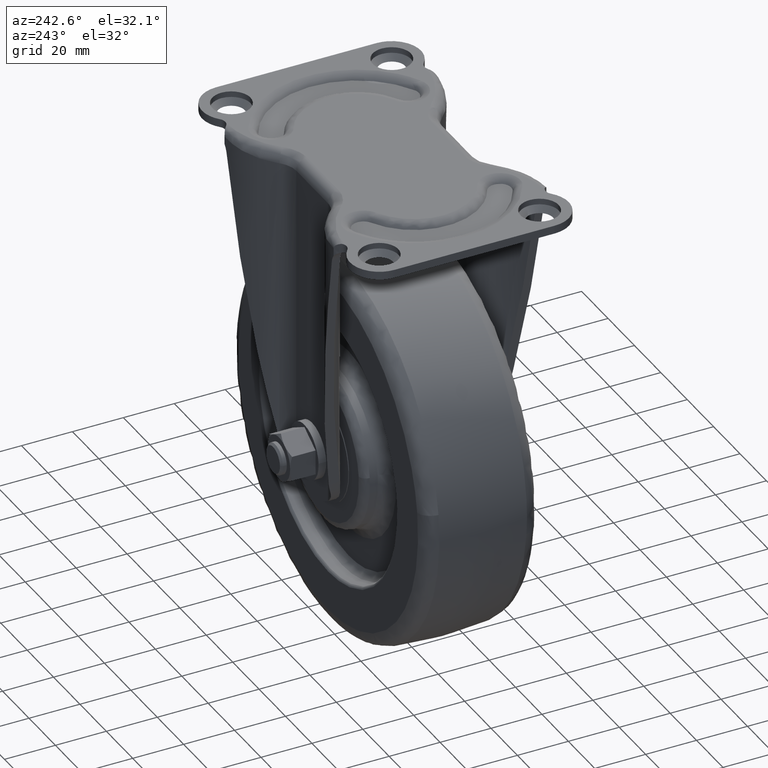
[diagram: clean part render]
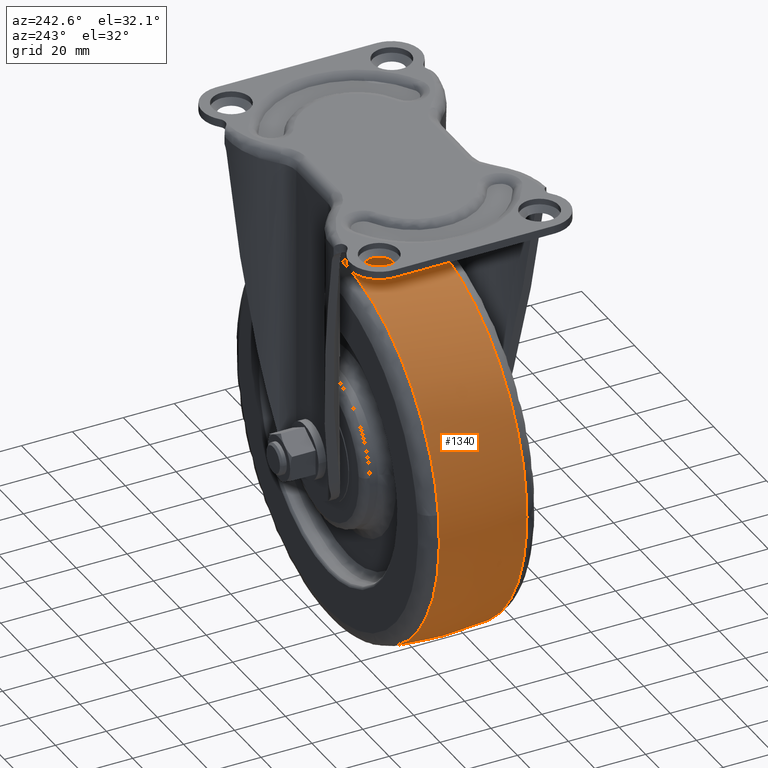
[diagram: same view with one face highlighted and labeled with its STEP entity id]
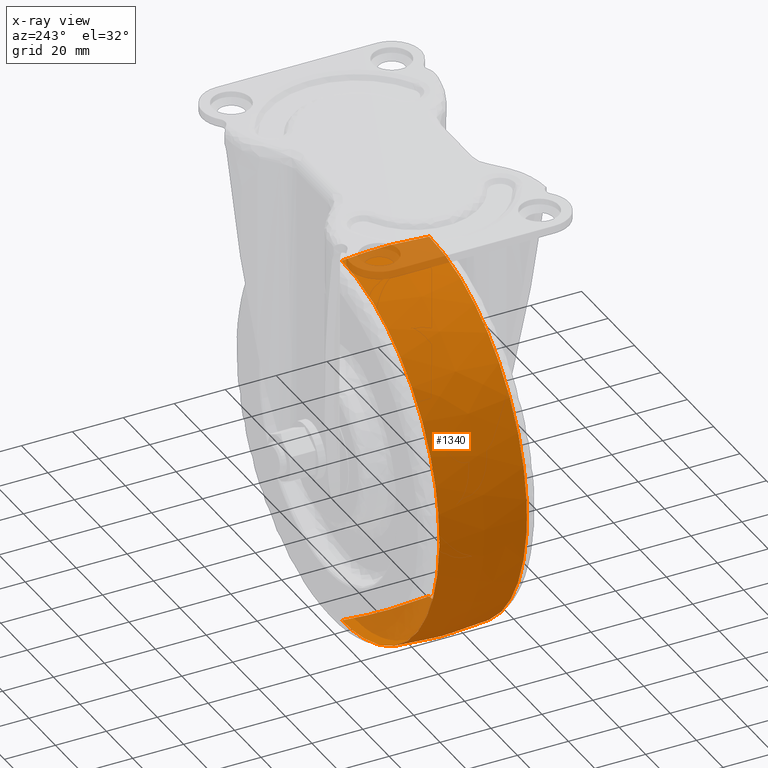
[diagram: x-ray of the same camera — body ghosted, the highlighted face saturated]
A machine part, auxiliary view. The second image highlights one B-rep face of the part: STEP entity #1340.
The next image is the same camera in x-ray: the body ghosted, the highlighted face saturated — about 12% of this face is hidden behind the body in this view.
In plain terms, the highlighted face is a freeform B-spline surface patch.
Its self-contained STEP definition (entity closure, byte-faithful):
#500=CARTESIAN_POINT('',(0.0,17.187455557891798,-37.987948970251040));
#501=VERTEX_POINT('',#500);
#532=CARTESIAN_POINT('',(-73.306081237421012,17.187453939263872,-101.801872862668400));
#533=VERTEX_POINT('',#532);
#547=CARTESIAN_POINT('',(0.0,17.187455557891798,-37.987948970251040));
#548=CARTESIAN_POINT('',(-64.428475061496727,17.187454748562249,-37.987948784186933));
#549=CARTESIAN_POINT('',(-73.306081237421012,17.187453939263872,-101.801872862668400));
#557=(BOUNDED_CURVE()B_SPLINE_CURVE(2,(#547,#548,#549),.UNSPECIFIED.,.F.,.U.)B_SPLINE_CURVE_WITH_KNOTS((3,3),(0.500000000000000,0.726207425836809),.UNSPECIFIED.)CURVE()GEOMETRIC_REPRESENTATION_ITEM()RATIONAL_B_SPLINE_CURVE((1.0,0.734981515708607,0.949556224463044))REPRESENTATION_ITEM(''));
#558=EDGE_CURVE('',#501,#533,#557,.T.);
#586=CARTESIAN_POINT('',(0.0,17.187455557964309,-186.012051029740600));
#587=VERTEX_POINT('',#586);
#601=CARTESIAN_POINT('',(-73.306081237421012,17.187453939263868,-101.801872862668400));
#602=CARTESIAN_POINT('',(-74.012048432415611,17.187453988037735,-106.876500893222030));
#603=CARTESIAN_POINT('',(-74.012048339829363,17.187454044066250,-111.999999651960390));
#604=CARTESIAN_POINT('',(-74.012047002364753,17.187454853432147,-186.012050867769430));
#605=CARTESIAN_POINT('',(0.0,17.187455557964309,-186.012051029740600));
#613=(BOUNDED_CURVE()B_SPLINE_CURVE(2,(#601,#602,#603,#604,#605),.UNSPECIFIED.,.F.,.U.)B_SPLINE_CURVE_WITH_KNOTS((3,2,3),(0.726207425836809,0.750000000000000,1.0),.UNSPECIFIED.)CURVE()GEOMETRIC_REPRESENTATION_ITEM()RATIONAL_B_SPLINE_CURVE((0.949556224463044,0.972125265477940,1.0,0.707106781186548,1.0))REPRESENTATION_ITEM(''));
#614=EDGE_CURVE('',#533,#587,#613,.T.);
#1216=CARTESIAN_POINT('',(0.0,-17.187448532176511,-186.012051840111610));
#1217=VERTEX_POINT('',#1216);
#1218=CARTESIAN_POINT('',(0.0,-17.187448532176511,-186.012051840111610));
#1219=CARTESIAN_POINT('',(0.0,-12.909466058557710,-186.505521757571390));
#1220=CARTESIAN_POINT('',(0.0,-1.444872390624393,-187.329743690260500));
#1221=CARTESIAN_POINT('',(0.0,10.057572451307280,-186.834870853748900));
#1222=CARTESIAN_POINT('',(0.0,17.187455557964309,-186.012051029740600));
#1223=B_SPLINE_CURVE_WITH_KNOTS('',3,(#1218,#1219,#1220,#1221,#1222),.UNSPECIFIED.,.F.,.U.,(4,1,4),(-8.087888E-009,12.919056414048290,34.450590039239863),.UNSPECIFIED.);
#1224=EDGE_CURVE('',#1217,#587,#1223,.T.);
#1228=CARTESIAN_POINT('',(0.0,-17.187448539475739,-37.987948095799382));
#1229=VERTEX_POINT('',#1228);
#1230=CARTESIAN_POINT('',(0.0,-17.187448539475739,-37.987948095799382));
#1231=CARTESIAN_POINT('',(0.0,-12.909466529767140,-37.494500131245530));
#1232=CARTESIAN_POINT('',(0.0,-1.444870126758955,-36.670172592098780));
#1233=CARTESIAN_POINT('',(0.0,10.057570064304951,-37.165198590588560));
#1234=CARTESIAN_POINT('',(0.0,17.187455557891798,-37.987948970251040));
#1235=B_SPLINE_CURVE_WITH_KNOTS('',3,(#1230,#1231,#1232,#1233,#1234),.UNSPECIFIED.,.F.,.U.,(4,1,4),(-8.087625E-009,12.919056416750960,34.450590046449271),.UNSPECIFIED.);
#1236=EDGE_CURVE('',#1229,#501,#1235,.T.);
#1271=CARTESIAN_POINT('',(0.0,-18.920307943067264,-38.198044544638101));
#1272=CARTESIAN_POINT('',(0.0,-9.498084398862195,-37.0));
#1273=CARTESIAN_POINT('',(0.0,0.0,-37.000000000000007));
#1274=CARTESIAN_POINT('',(0.0,9.498084398862204,-37.000000000000014));
#1275=CARTESIAN_POINT('',(0.0,18.920307943067272,-38.198044544638115));
#1276=CARTESIAN_POINT('',(-73.801955455361878,-18.920307943067257,-38.198044544638101));
#1277=CARTESIAN_POINT('',(-74.999999999999986,-9.498084398862195,-37.000000000000021));
#1278=CARTESIAN_POINT('',(-75.000000000000014,0.0,-37.000000000000014));
#1279=CARTESIAN_POINT('',(-75.0,9.498084398862204,-37.000000000000028));
#1280=CARTESIAN_POINT('',(-73.801955455361906,18.920307943067279,-38.198044544638130));
#1281=CARTESIAN_POINT('',(-73.801955455361892,-18.920307943067264,-112.000000000000010));
#1282=CARTESIAN_POINT('',(-75.000000000000014,-9.498084398862195,-112.000000000000040));
#1283=CARTESIAN_POINT('',(-75.0,0.0,-112.0));
#1284=CARTESIAN_POINT('',(-75.0,9.498084398862204,-112.000000000000060));
#1285=CARTESIAN_POINT('',(-73.801955455361892,18.920307943067272,-112.000000000000030));
#1286=CARTESIAN_POINT('',(-73.801955455361878,-18.920307943067257,-185.801955455361930));
#1287=CARTESIAN_POINT('',(-74.999999999999986,-9.498084398862195,-187.000000000000060));
#1288=CARTESIAN_POINT('',(-75.000000000000014,0.0,-187.0));
#1289=CARTESIAN_POINT('',(-75.0,9.498084398862204,-187.000000000000090));
#1290=CARTESIAN_POINT('',(-73.801955455361906,18.920307943067279,-185.801955455361850));
#1291=CARTESIAN_POINT('',(0.0,-18.920307943067264,-185.801955455361930));
#1292=CARTESIAN_POINT('',(0.0,-9.498084398862195,-187.0));
#1293=CARTESIAN_POINT('',(0.0,0.0,-187.0));
#1294=CARTESIAN_POINT('',(0.0,9.498084398862204,-187.0));
#1295=CARTESIAN_POINT('',(0.0,18.920307943067272,-185.801955455361960));
#1303=(BOUNDED_SURFACE()B_SPLINE_SURFACE(2,2,((#1271,#1276,#1281,#1286,#1291),(#1272,#1277,#1282,#1287,#1292),(#1273,#1278,#1283,#1288,#1293),(#1274,#1279,#1284,#1289,#1294),(#1275,#1280,#1285,#1290,#1295)),.UNSPECIFIED.,.F.,.F.,.U.)B_SPLINE_SURFACE_WITH_KNOTS((3,2,3),(3,2,3),(0.0,19.241323011299549,38.482646022599127),(0.0,124.264068711928500,248.528137423857090),.UNSPECIFIED.)GEOMETRIC_REPRESENTATION_ITEM()RATIONAL_B_SPLINE_SURFACE(((0.970787912043984,0.686450715700231,0.970787912043984,0.686450715700231,0.970787912043984),(0.983316372369833,0.695309674954465,0.983316372369833,0.695309674954465,0.983316372369833),(1.0,0.707106781186548,1.0,0.707106781186548,1.0),(0.983316372369833,0.695309674954465,0.983316372369833,0.695309674954465,0.983316372369833),(0.970787912043984,0.686450715700231,0.970787912043984,0.686450715700231,0.970787912043984)))REPRESENTATION_ITEM('')SURFACE());
#1304=ORIENTED_EDGE('',*,*,#1224,.F.);
#1305=CARTESIAN_POINT('',(-73.638363275763339,-17.187448864491220,-119.427976142615510));
#1306=VERTEX_POINT('',#1305);
#1307=CARTESIAN_POINT('',(-73.638363275763339,-17.187448864491213,-119.427976142615580));
#1308=CARTESIAN_POINT('',(-66.921959853470881,-17.187448696692190,-186.012051982880620));
#1309=CARTESIAN_POINT('',(0.0,-17.187448532176511,-186.012051840111610));
#1317=(BOUNDED_CURVE()B_SPLINE_CURVE(2,(#1307,#1308,#1309),.UNSPECIFIED.,.F.,.U.)B_SPLINE_CURVE_WITH_KNOTS((3,3),(0.767423439797111,1.0),.UNSPECIFIED.)CURVE()GEOMETRIC_REPRESENTATION_ITEM()RATIONAL_B_SPLINE_CURVE((0.962019634721643,0.727519610646460,1.0))REPRESENTATION_ITEM(''));
#1318=EDGE_CURVE('',#1306,#1217,#1317,.T.);
#1319=ORIENTED_EDGE('',*,*,#1318,.F.);
#1320=CARTESIAN_POINT('',(0.0,-17.187448539475739,-37.987948095799382));
#1321=CARTESIAN_POINT('',(-74.012047231877318,-17.187448688231392,-37.987948224891710));
#1322=CARTESIAN_POINT('',(-74.012048647240874,-17.187448849097489,-112.000000239817000));
#1323=CARTESIAN_POINT('',(-74.012048718444774,-17.187448857190315,-115.723387850539580));
#1324=CARTESIAN_POINT('',(-73.638363275763339,-17.187448864491213,-119.427976142615580));
#1332=(BOUNDED_CURVE()B_SPLINE_CURVE(2,(#1320,#1321,#1322,#1323,#1324),.UNSPECIFIED.,.F.,.U.)B_SPLINE_CURVE_WITH_KNOTS((3,2,3),(0.500000000000000,0.750000000000000,0.767423439797111),.UNSPECIFIED.)CURVE()GEOMETRIC_REPRESENTATION_ITEM()RATIONAL_B_SPLINE_CURVE((1.0,0.707106781186548,1.0,0.979587170540087,0.962019634721643))REPRESENTATION_ITEM(''));
#1333=EDGE_CURVE('',#1229,#1306,#1332,.T.);
#1334=ORIENTED_EDGE('',*,*,#1333,.F.);
#1335=ORIENTED_EDGE('',*,*,#1236,.T.);
#1336=ORIENTED_EDGE('',*,*,#558,.T.);
#1337=ORIENTED_EDGE('',*,*,#614,.T.);
#1338=EDGE_LOOP('',(#1304,#1319,#1334,#1335,#1336,#1337));
#1339=FACE_OUTER_BOUND('',#1338,.T.);
#1340=ADVANCED_FACE('',(#1339),#1303,.T.);